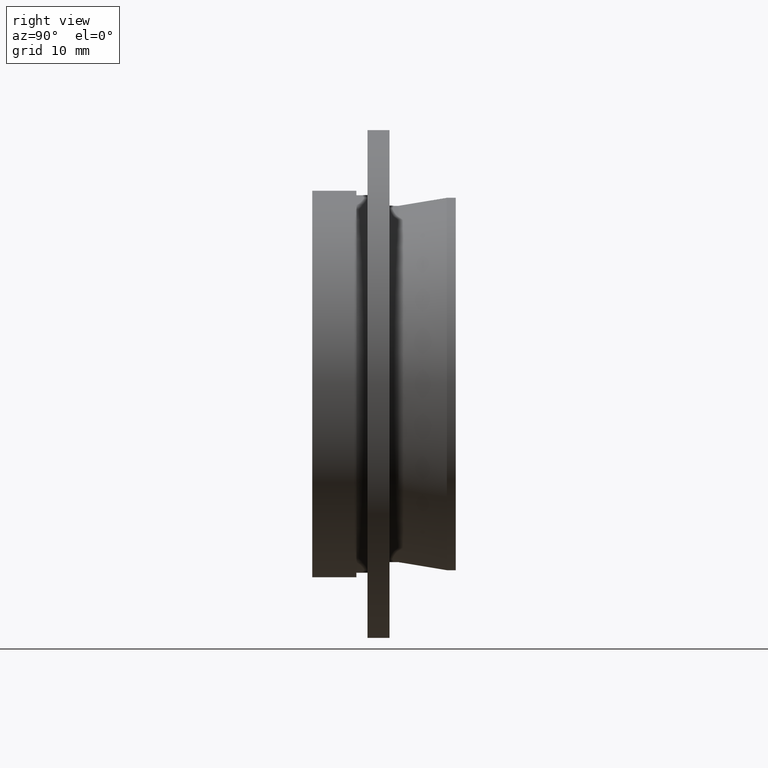
[diagram: clean part render]
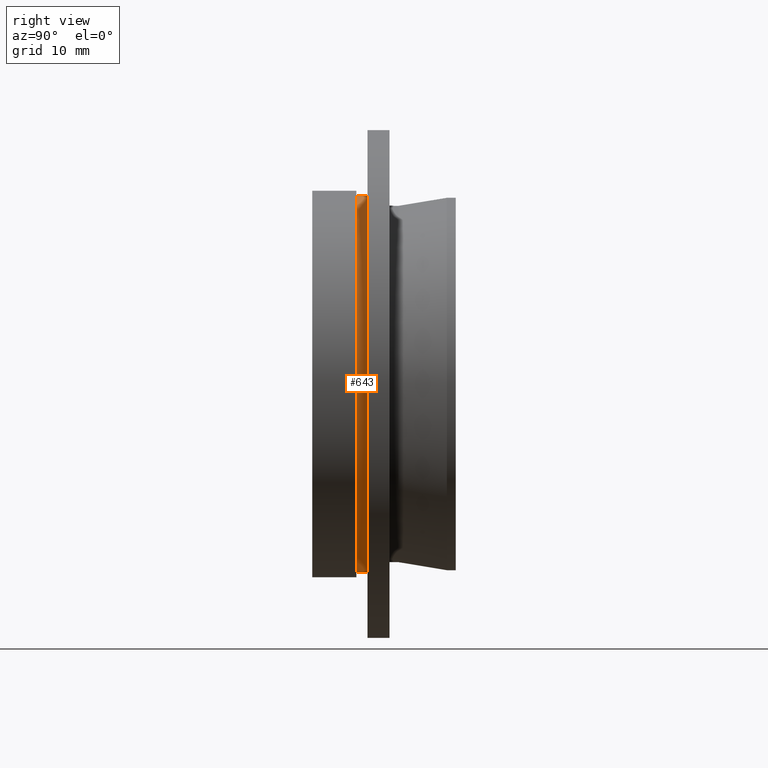
[diagram: same view with one face highlighted and labeled with its STEP entity id]
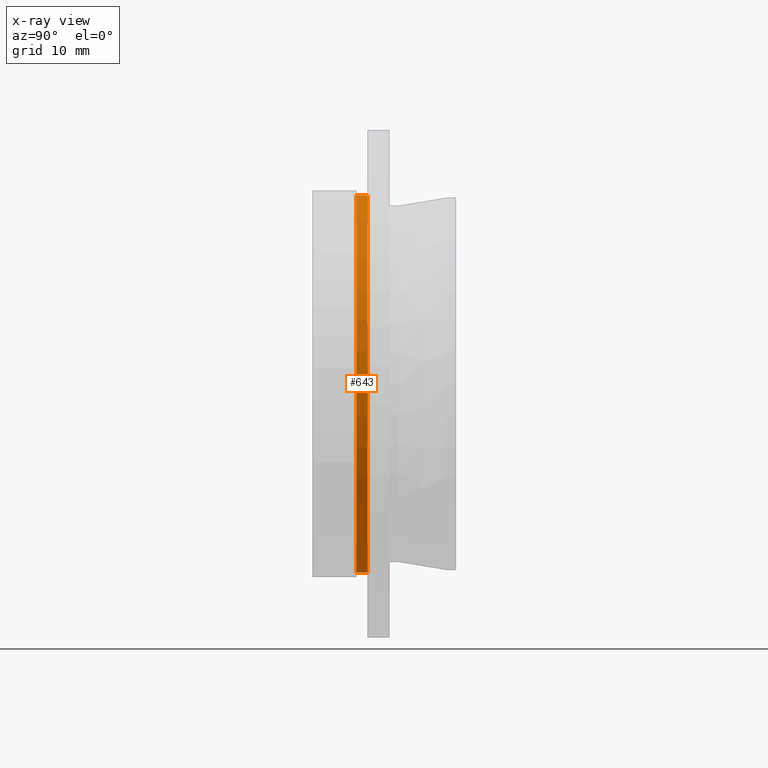
[diagram: x-ray of the same camera — body ghosted, the highlighted face saturated]
A machine part, right view. The second image highlights one B-rep face of the part: STEP entity #643.
The next image is the same camera in x-ray: the body ghosted, the highlighted face saturated — about 0% of this face is hidden behind the body in this view.
In plain terms, the highlighted cylindrical surface (partial cylindrical patch) has radius 17.1 mm, axis along (-0, -1, -0).
Its self-contained STEP definition (entity closure, byte-faithful):
#4 = CARTESIAN_POINT ( 'NONE',  ( 2.094146026541974000E-015, 0.0000000000000000000, 17.10000000000000100 ) ) ;
#46 = EDGE_CURVE ( 'NONE', #118, #142, #406, .T. ) ;
#57 = DIRECTION ( 'NONE',  ( -0.0000000000000000000, -1.000000000000000000, -0.0000000000000000000 ) ) ;
#60 = CIRCLE ( 'NONE', #267, 17.10000000000000100 ) ;
#75 = CARTESIAN_POINT ( 'NONE',  ( 0.0000000000000000000, 3.999999999999998200, -17.10000000000000100 ) ) ;
#82 = LINE ( 'NONE', #288, #516 ) ;
#94 = EDGE_CURVE ( 'NONE', #666, #118, #640, .T. ) ;
#114 = FACE_OUTER_BOUND ( 'NONE', #548, .T. ) ;
#117 = DIRECTION ( 'NONE',  ( -0.0000000000000000000, -1.000000000000000000, -0.0000000000000000000 ) ) ;
#118 = VERTEX_POINT ( 'NONE', #588 ) ;
#142 = VERTEX_POINT ( 'NONE', #541 ) ;
#167 = DIRECTION ( 'NONE',  ( 0.0000000000000000000, 0.0000000000000000000, -1.000000000000000000 ) ) ;
#182 = DIRECTION ( 'NONE',  ( -0.0000000000000000000, -1.000000000000000000, -0.0000000000000000000 ) ) ;
#183 = DIRECTION ( 'NONE',  ( -0.0000000000000000000, -1.000000000000000000, -0.0000000000000000000 ) ) ;
#192 = VECTOR ( 'NONE', #57, 1000.000000000000000 ) ;
#205 = AXIS2_PLACEMENT_3D ( 'NONE', #471, #117, #167 ) ;
#224 = VERTEX_POINT ( 'NONE', #75 ) ;
#234 = EDGE_CURVE ( 'NONE', #224, #142, #60, .T. ) ;
#267 = AXIS2_PLACEMENT_3D ( 'NONE', #439, #182, #601 ) ;
#278 = EDGE_CURVE ( 'NONE', #666, #224, #82, .T. ) ;
#288 = CARTESIAN_POINT ( 'NONE',  ( 0.0000000000000000000, 0.0000000000000000000, -17.10000000000000100 ) ) ;
#316 = CARTESIAN_POINT ( 'NONE',  ( 0.0000000000000000000, 4.999999999999998200, -17.10000000000000100 ) ) ;
#337 = ORIENTED_EDGE ( 'NONE', *, *, #46, .T. ) ;
#406 = LINE ( 'NONE', #4, #192 ) ;
#426 = ORIENTED_EDGE ( 'NONE', *, *, #278, .F. ) ;
#435 = CYLINDRICAL_SURFACE ( 'NONE', #505, 17.10000000000000100 ) ;
#439 = CARTESIAN_POINT ( 'NONE',  ( 0.0000000000000000000, 3.999999999999998200, 0.0000000000000000000 ) ) ;
#461 = DIRECTION ( 'NONE',  ( 0.0000000000000000000, 0.0000000000000000000, -1.000000000000000000 ) ) ;
#471 = CARTESIAN_POINT ( 'NONE',  ( 0.0000000000000000000, 4.999999999999998200, 0.0000000000000000000 ) ) ;
#505 = AXIS2_PLACEMENT_3D ( 'NONE', #663, #617, #461 ) ;
#516 = VECTOR ( 'NONE', #183, 1000.000000000000000 ) ;
#541 = CARTESIAN_POINT ( 'NONE',  ( 2.094146026541974000E-015, 3.999999999999998200, 17.10000000000000100 ) ) ;
#548 = EDGE_LOOP ( 'NONE', ( #572, #337, #597, #426 ) ) ;
#572 = ORIENTED_EDGE ( 'NONE', *, *, #94, .T. ) ;
#588 = CARTESIAN_POINT ( 'NONE',  ( 2.094146026541974000E-015, 4.999999999999998200, 17.10000000000000100 ) ) ;
#597 = ORIENTED_EDGE ( 'NONE', *, *, #234, .F. ) ;
#601 = DIRECTION ( 'NONE',  ( 0.0000000000000000000, 0.0000000000000000000, -1.000000000000000000 ) ) ;
#617 = DIRECTION ( 'NONE',  ( -0.0000000000000000000, -1.000000000000000000, -0.0000000000000000000 ) ) ;
#640 = CIRCLE ( 'NONE', #205, 17.10000000000000100 ) ;
#643 = ADVANCED_FACE ( 'NONE', ( #114 ), #435, .T. ) ;
#663 = CARTESIAN_POINT ( 'NONE',  ( 0.0000000000000000000, 0.0000000000000000000, 0.0000000000000000000 ) ) ;
#666 = VERTEX_POINT ( 'NONE', #316 ) ;